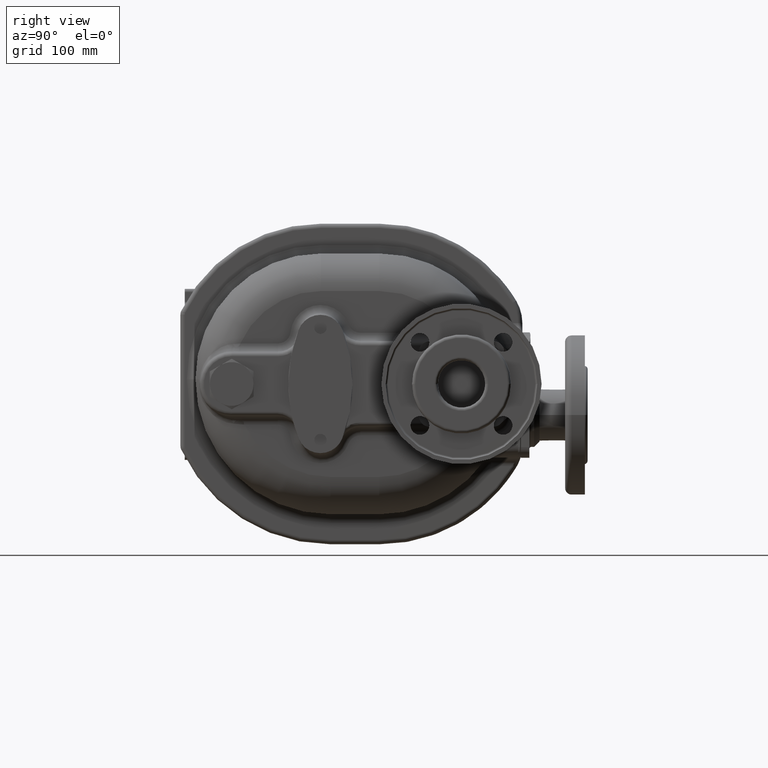
[diagram: clean part render]
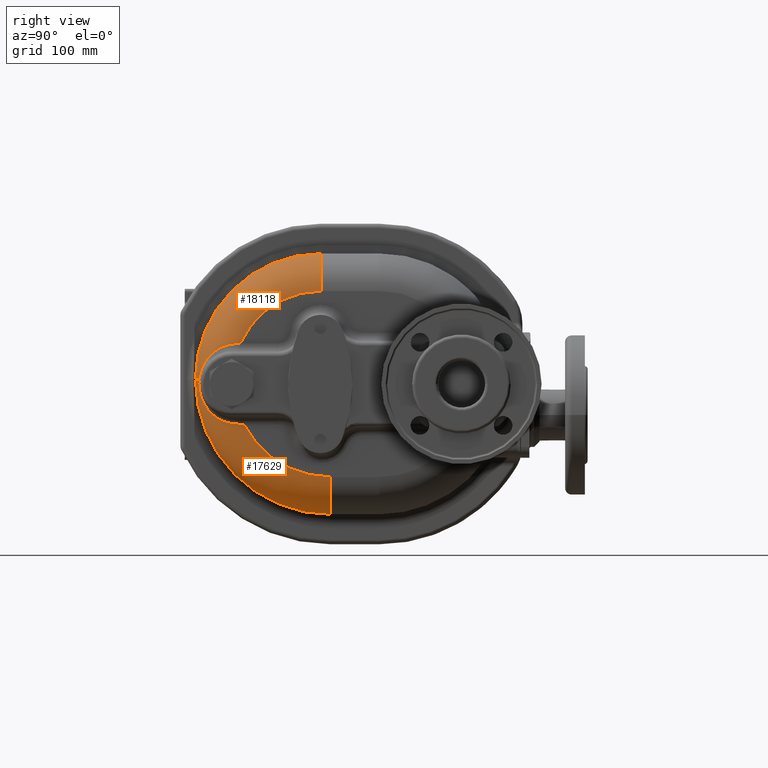
[diagram: same view with one multi-face feature highlighted, each face labeled with its STEP entity id]
A machine part, right view. The highlighted faces form ONE feature: a constant-radius fillet chain: 2 tangent blend faces with common blend radius 35 mm. The faces share edges in the B-rep.
Their STEP definitions:
[1] entity #18118 (Torus):
#4706=CARTESIAN_POINT('',(2.45E1,-8.7E1,-4.5E0));
#4707=DIRECTION('',(0.E0,0.E0,-1.E0));
#4708=DIRECTION('',(4.343204760822E-1,-9.007584160338E-1,0.E0));
#4709=AXIS2_PLACEMENT_3D('',#4706,#4707,#4708);
#4777=CARTESIAN_POINT('',(3.970121666288E1,-1.185265445612E2,-4.5E0));
#4810=CARTESIAN_POINT('',(2.45E1,-4.5E0,-4.5E0));
#4811=DIRECTION('',(1.E0,0.E0,0.E0));
#4812=DIRECTION('',(0.E0,0.E0,1.E0));
#4813=AXIS2_PLACEMENT_3D('',#4810,#4811,#4812);
#5016=CARTESIAN_POINT('',(5.95E1,-4.5E0,-4.5E0));
#5017=DIRECTION('',(1.E0,0.E0,0.E0));
#5018=DIRECTION('',(0.E0,0.E0,1.E0));
#5019=AXIS2_PLACEMENT_3D('',#5016,#5017,#5018);
#5053=CARTESIAN_POINT('',(5.896790278080E1,-8.671026349326E1,2.848256080268E1));
#5054=CARTESIAN_POINT('',(5.902602979515E1,-8.634487568833E1,2.850827826078E1));
#5055=CARTESIAN_POINT('',(5.913311016777E1,-8.560927043133E1,2.856066412844E1));
#5056=CARTESIAN_POINT('',(5.926561094780E1,-8.449248890311E1,2.864213432199E1));
#5057=CARTESIAN_POINT('',(5.936955658780E1,-8.336235053312E1,2.872662657921E1));
#5058=CARTESIAN_POINT('',(5.944445252807E1,-8.221913407429E1,2.881425466379E1));
#5059=CARTESIAN_POINT('',(5.948980401267E1,-8.106313141486E1,2.890513505456E1));
#5060=CARTESIAN_POINT('',(5.949999997499E1,-8.028386591820E1,2.896799567920E1));
#5061=CARTESIAN_POINT('',(5.95E1,-7.989230730004E1,2.9E1));
#5063=CARTESIAN_POINT('',(3.970121666288E1,-1.185265445612E2,-4.5E0));
#5064=CARTESIAN_POINT('',(3.975754491153E1,-1.184993846506E2,
-4.236840235408E0));
#5065=CARTESIAN_POINT('',(3.987816419137E1,-1.184390321552E2,
-3.704202796823E0));
#5066=CARTESIAN_POINT('',(4.008335915577E1,-1.183293120331E2,
-2.887645665343E0));
#5067=CARTESIAN_POINT('',(4.031387784195E1,-1.181988256165E2,
-2.051734451342E0));
#5068=CARTESIAN_POINT('',(4.057063040129E1,-1.180458926849E2,
-1.195509717043E0));
#5069=CARTESIAN_POINT('',(4.085436013785E1,-1.178687529862E2,
-3.184780769008E-1));
#5070=CARTESIAN_POINT('',(4.116560825928E1,-1.176655879588E2,
5.794054370406E-1));
#5071=CARTESIAN_POINT('',(4.150459498714E1,-1.174346084938E2,1.497553622814E0));
#5072=CARTESIAN_POINT('',(4.187114910014E1,-1.171741284169E2,2.434720076004E0));
#5073=CARTESIAN_POINT('',(4.226463798824E1,-1.168826535841E2,3.388961117184E0));
#5074=CARTESIAN_POINT('',(4.268392809077E1,-1.165589670200E2,4.357656493674E0));
#5075=CARTESIAN_POINT('',(4.312738700704E1,-1.162021971260E2,5.337594479451E0));
#5076=CARTESIAN_POINT('',(4.359293002463E1,-1.158118591784E2,6.325111945424E0));
#5077=CARTESIAN_POINT('',(4.407810311738E1,-1.153878668114E2,7.316266058080E0));
#5078=CARTESIAN_POINT('',(4.458018764451E1,-1.149305165764E2,8.307008988559E0));
#5079=CARTESIAN_POINT('',(4.509630951809E1,-1.144404539938E2,9.293341463786E0));
#5080=CARTESIAN_POINT('',(4.562355661014E1,-1.139186121264E2,1.027146345386E1));
#5081=CARTESIAN_POINT('',(4.615906900521E1,-1.133661537084E2,1.123786392785E1));
#5082=CARTESIAN_POINT('',(4.670010983041E1,-1.127844129506E2,1.218937734424E1));
#5083=CARTESIAN_POINT('',(4.724411192783E1,-1.121748454412E2,1.312320433399E1));
#5084=CARTESIAN_POINT('',(4.778870489526E1,-1.115389864973E2,1.403690863150E1));
#5085=CARTESIAN_POINT('',(4.833172450656E1,-1.108784207035E2,1.492839509158E1));
#5086=CARTESIAN_POINT('',(4.887121262291E1,-1.101947575565E2,1.579588218333E1));
#5087=CARTESIAN_POINT('',(4.940540863287E1,-1.094896149759E2,1.663786921708E1));
#5088=CARTESIAN_POINT('',(4.993273721541E1,-1.087646072178E2,1.745310466296E1));
#5089=CARTESIAN_POINT('',(5.045179405227E1,-1.080213364977E2,1.824055649589E1));
#5090=CARTESIAN_POINT('',(5.096133150609E1,-1.072613864603E2,1.899938631706E1));
#5091=CARTESIAN_POINT('',(5.146024433892E1,-1.064863178268E2,1.972892622659E1));
#5092=CARTESIAN_POINT('',(5.194755688365E1,-1.056976643126E2,2.042865968971E1));
#5093=CARTESIAN_POINT('',(5.242241118569E1,-1.048969293996E2,2.109820497285E1));
#5094=CARTESIAN_POINT('',(5.288405643996E1,-1.040855833313E2,2.173730115214E1));
#5095=CARTESIAN_POINT('',(5.333183969631E1,-1.032650600861E2,2.234579628324E1));
#5096=CARTESIAN_POINT('',(5.376519752309E1,-1.024367546019E2,2.292363705434E1));
#5097=CARTESIAN_POINT('',(5.418364866436E1,-1.016020199406E2,2.347085980897E1));
#5098=CARTESIAN_POINT('',(5.458678749078E1,-1.007621644903E2,2.398758255392E1));
#5099=CARTESIAN_POINT('',(5.497427807209E1,-9.991844931869E1,2.447399766230E1));
#5100=CARTESIAN_POINT('',(5.534584879631E1,-9.907208563935E1,2.493036514169E1));
#5101=CARTESIAN_POINT('',(5.570128748895E1,-9.822423228054E1,2.535700638869E1));
#5102=CARTESIAN_POINT('',(5.604043677248E1,-9.737599358039E1,2.575429810932E1));
#5103=CARTESIAN_POINT('',(5.636318968426E1,-9.652841760310E1,2.612266644748E1));
#5104=CARTESIAN_POINT('',(5.666948569998E1,-9.568249412799E1,2.646258149979E1));
#5105=CARTESIAN_POINT('',(5.695930671430E1,-9.483915345092E1,2.677455171409E1));
#5106=CARTESIAN_POINT('',(5.723267324173E1,-9.399926529878E1,2.705911850374E1));
#5107=CARTESIAN_POINT('',(5.748964067682E1,-9.316363821446E1,2.731685092479E1));
#5108=CARTESIAN_POINT('',(5.773029578464E1,-9.233301884019E1,2.754834059988E1));
#5109=CARTESIAN_POINT('',(5.795475282905E1,-9.150809287684E1,2.775419632608E1));
#5110=CARTESIAN_POINT('',(5.816315050973E1,-9.068948465278E1,2.793503962190E1));
#5111=CARTESIAN_POINT('',(5.835564893275E1,-8.987775369638E1,2.809149989485E1));
#5112=CARTESIAN_POINT('',(5.853242105645E1,-8.907342557606E1,2.822420675097E1));
#5113=CARTESIAN_POINT('',(5.869367182337E1,-8.827687231982E1,2.833379955416E1));
#5114=CARTESIAN_POINT('',(5.883956596088E1,-8.748868899340E1,2.842088114612E1));
#5115=CARTESIAN_POINT('',(5.892678064682E1,-8.696875816611E1,2.846436649549E1));
#5116=CARTESIAN_POINT('',(5.896790278080E1,-8.671026349326E1,2.848256080268E1));
#5118=CARTESIAN_POINT('',(2.45E1,-4.5E0,7.8E1));
#5119=DIRECTION('',(0.E0,-1.E0,0.E0));
#5120=DIRECTION('',(1.E0,0.E0,0.E0));
#5121=AXIS2_PLACEMENT_3D('',#5118,#5119,#5120);
#10007=CARTESIAN_POINT('',(2.45E1,-1.22E2,-4.5E0));
#10008=VERTEX_POINT('',#10007);
#10009=CARTESIAN_POINT('',(2.45E1,-4.5E0,1.13E2));
#10010=VERTEX_POINT('',#10009);
#10012=CARTESIAN_POINT('',(5.95E1,-4.5E0,7.8E1));
#10014=VERTEX_POINT('',#10012);
#10021=CARTESIAN_POINT('',(5.95E1,-7.989230729998E1,2.899999999977E1));
#10022=VERTEX_POINT('',#10021);
#10118=VERTEX_POINT('',#4777);
#10119=VERTEX_POINT('',#5116);
#18102=CARTESIAN_POINT('',(2.45E1,-4.5E0,-4.5E0));
#18103=DIRECTION('',(-1.E0,0.E0,0.E0));
#18104=DIRECTION('',(0.E0,1.859029776520E-4,9.999999827200E-1));
#18105=AXIS2_PLACEMENT_3D('',#18102,#18103,#18104);
#18106=TOROIDAL_SURFACE('',#18105,8.25E1,3.5E1);
#18107=ORIENTED_EDGE('',*,*,#18084,.T.);
#18109=ORIENTED_EDGE('',*,*,#18108,.F.);
#18111=ORIENTED_EDGE('',*,*,#18110,.F.);
#18112=ORIENTED_EDGE('',*,*,#17621,.T.);
#18113=ORIENTED_EDGE('',*,*,#17651,.F.);
#18115=ORIENTED_EDGE('',*,*,#18114,.F.);
#18116=EDGE_LOOP('',(#18107,#18109,#18111,#18112,#18113,#18115));
#18117=FACE_OUTER_BOUND('',#18116,.F.);
#18118=ADVANCED_FACE('',(#18117),#18106,.T.);
#4710=CIRCLE('',#4709,3.5E1);
#4814=CIRCLE('',#4813,1.175E2);
#5020=CIRCLE('',#5019,8.25E1);
#5062=B_SPLINE_CURVE_WITH_KNOTS('',3,(#5053,#5054,#5055,#5056,#5057,#5058,#5059,
#5060,#5061),.UNSPECIFIED.,.F.,.F.,(4,1,1,1,1,1,4),(0.E0,1.666666666667E-1,
3.333333333333E-1,5.E-1,6.666666666667E-1,8.333333333333E-1,1.E0),
.UNSPECIFIED.);
#5117=B_SPLINE_CURVE_WITH_KNOTS('',3,(#5063,#5064,#5065,#5066,#5067,#5068,#5069,
#5070,#5071,#5072,#5073,#5074,#5075,#5076,#5077,#5078,#5079,#5080,#5081,#5082,
#5083,#5084,#5085,#5086,#5087,#5088,#5089,#5090,#5091,#5092,#5093,#5094,#5095,
#5096,#5097,#5098,#5099,#5100,#5101,#5102,#5103,#5104,#5105,#5106,#5107,#5108,
#5109,#5110,#5111,#5112,#5113,#5114,#5115,#5116),.UNSPECIFIED.,.F.,.F.,(4,1,1,1,
1,1,1,1,1,1,1,1,1,1,1,1,1,1,1,1,1,1,1,1,1,1,1,1,1,1,1,1,1,1,1,1,1,1,1,1,1,1,1,1,
1,1,1,1,1,1,1,4),(0.E0,1.960784313725E-2,3.921568627451E-2,5.882352941176E-2,
7.843137254902E-2,9.803921568627E-2,1.176470588235E-1,1.372549019608E-1,
1.568627450980E-1,1.764705882353E-1,1.960784313725E-1,2.156862745098E-1,
2.352941176471E-1,2.549019607843E-1,2.745098039216E-1,2.941176470588E-1,
3.137254901961E-1,3.333333333333E-1,3.529411764706E-1,3.725490196078E-1,
3.921568627451E-1,4.117647058824E-1,4.313725490196E-1,4.509803921569E-1,
4.705882352941E-1,4.901960784314E-1,5.098039215686E-1,5.294117647059E-1,
5.490196078431E-1,5.686274509804E-1,5.882352941176E-1,6.078431372549E-1,
6.274509803922E-1,6.470588235294E-1,6.666666666667E-1,6.862745098039E-1,
7.058823529412E-1,7.254901960784E-1,7.450980392157E-1,7.647058823529E-1,
7.843137254902E-1,8.039215686275E-1,8.235294117647E-1,8.431372549020E-1,
8.627450980392E-1,8.823529411765E-1,9.019607843137E-1,9.215686274510E-1,
9.411764705882E-1,9.607843137255E-1,9.803921568627E-1,1.E0),.UNSPECIFIED.);
#5122=CIRCLE('',#5121,3.5E1);
#17621=EDGE_CURVE('',#10118,#10008,#4710,.T.);
#17651=EDGE_CURVE('',#10010,#10008,#4814,.T.);
#18084=EDGE_CURVE('',#10014,#10022,#5020,.T.);
#18108=EDGE_CURVE('',#10119,#10022,#5062,.T.);
#18110=EDGE_CURVE('',#10118,#10119,#5117,.T.);
#18114=EDGE_CURVE('',#10014,#10010,#5122,.T.);
[2] entity #17629 (Torus):
#4570=CARTESIAN_POINT('',(5.95E1,4.5E0,-4.5E0));
#4571=DIRECTION('',(1.E0,0.E0,0.E0));
#4572=DIRECTION('',(0.E0,-8.855831510342E-1,-4.644808743149E-1));
#4573=AXIS2_PLACEMENT_3D('',#4570,#4571,#4572);
#4701=CARTESIAN_POINT('',(2.45E1,4.5E0,-9.6E1));
#4702=DIRECTION('',(0.E0,1.E0,0.E0));
#4703=DIRECTION('',(1.E0,0.E0,0.E0));
#4704=AXIS2_PLACEMENT_3D('',#4701,#4702,#4703);
#4706=CARTESIAN_POINT('',(2.45E1,-8.7E1,-4.5E0));
#4707=DIRECTION('',(0.E0,0.E0,-1.E0));
#4708=DIRECTION('',(4.343204760822E-1,-9.007584160338E-1,0.E0));
#4709=AXIS2_PLACEMENT_3D('',#4706,#4707,#4708);
#4711=CARTESIAN_POINT('',(5.848180130472E1,-8.625933604142E1,
-4.620023547849E1));
#4712=CARTESIAN_POINT('',(5.842438479391E1,-8.652471765485E1,
-4.618026600948E1));
#4713=CARTESIAN_POINT('',(5.830440111598E1,-8.705864446193E1,
-4.613296193227E1));
#4714=CARTESIAN_POINT('',(5.810882986892E1,-8.786843939791E1,
-4.603929382518E1));
#4715=CARTESIAN_POINT('',(5.789734133622E1,-8.868725408391E1,
-4.592218548973E1));
#4716=CARTESIAN_POINT('',(5.766980888331E1,-8.951438589270E1,
-4.578098608726E1));
#4717=CARTESIAN_POINT('',(5.742604650510E1,-9.034940196222E1,
-4.561500581507E1));
#4718=CARTESIAN_POINT('',(5.716591582489E1,-9.119170377416E1,
-4.542357031621E1));
#4719=CARTESIAN_POINT('',(5.688930091298E1,-9.204064996955E1,
-4.520601190463E1));
#4720=CARTESIAN_POINT('',(5.659611654566E1,-9.289553329945E1,
-4.496167604769E1));
#4721=CARTESIAN_POINT('',(5.628631365220E1,-9.375557796750E1,
-4.468992828037E1));
#4722=CARTESIAN_POINT('',(5.595988197084E1,-9.461994358908E1,
-4.439015851275E1));
#4723=CARTESIAN_POINT('',(5.561685533256E1,-9.548772271155E1,
-4.406178761961E1));
#4724=CARTESIAN_POINT('',(5.525731584382E1,-9.635794229950E1,
-4.370427318830E1));
#4725=CARTESIAN_POINT('',(5.488139868734E1,-9.722956433618E1,
-4.331711580638E1));
#4726=CARTESIAN_POINT('',(5.448929721021E1,-9.810148671246E1,
-4.289986566225E1));
#4727=CARTESIAN_POINT('',(5.408126836002E1,-9.897254435762E1,
-4.245212950617E1));
#4728=CARTESIAN_POINT('',(5.365763833296E1,-9.984151100221E1,
-4.197357780602E1));
#4729=CARTESIAN_POINT('',(5.321880894068E1,-1.007071006155E2,
-4.146395266171E1));
#4730=CARTESIAN_POINT('',(5.276526451369E1,-1.015679691450E2,
-4.092307633376E1));
#4731=CARTESIAN_POINT('',(5.229757952186E1,-1.024227163500E2,
-4.035086063222E1));
#4732=CARTESIAN_POINT('',(5.181642726454E1,-1.032698873165E2,
-3.974731769938E1));
#4733=CARTESIAN_POINT('',(5.132258948159E1,-1.041079741897E2,
-3.911257216535E1));
#4734=CARTESIAN_POINT('',(5.081696734434E1,-1.049354175528E2,
-3.844687547605E1));
#4735=CARTESIAN_POINT('',(5.030059365873E1,-1.057506080013E2,
-3.775062251416E1));
#4736=CARTESIAN_POINT('',(4.977464679695E1,-1.065518872958E2,
-3.702437168236E1));
#4737=CARTESIAN_POINT('',(4.924046538589E1,-1.073375507386E2,
-3.626886776557E1));
#4738=CARTESIAN_POINT('',(4.869956477421E1,-1.081058491619E2,
-3.548506984061E1));
#4739=CARTESIAN_POINT('',(4.815365301066E1,-1.088549936544E2,-3.467418223E1));
#4740=CARTESIAN_POINT('',(4.760464637630E1,-1.095831621723E2,
-3.383768983455E1));
#4741=CARTESIAN_POINT('',(4.705468158115E1,-1.102885108158E2,
-3.297739545234E1));
#4742=CARTESIAN_POINT('',(4.650612211348E1,-1.109691911627E2,
-3.209545670439E1));
#4743=CARTESIAN_POINT('',(4.596155375614E1,-1.116233770593E2,
-3.119441666394E1));
#4744=CARTESIAN_POINT('',(4.542376542993E1,-1.122493017299E2,
-3.027722290890E1));
#4745=CARTESIAN_POINT('',(4.489570885345E1,-1.128453084394E2,
-2.934722370933E1));
#4746=CARTESIAN_POINT('',(4.438043222261E1,-1.134099150067E2,
-2.840812986536E1));
#4747=CARTESIAN_POINT('',(4.388098882923E1,-1.139418865854E2,
-2.746393709583E1));
#4748=CARTESIAN_POINT('',(4.340032215492E1,-1.144403124876E2,
-2.651880126366E1));
#4749=CARTESIAN_POINT('',(4.294113481814E1,-1.149046789885E2,
-2.557686463572E1));
#4750=CARTESIAN_POINT('',(4.250576932069E1,-1.153349134992E2,
-2.464207235070E1));
#4751=CARTESIAN_POINT('',(4.209611116786E1,-1.157313983542E2,
-2.371799089318E1));
#4752=CARTESIAN_POINT('',(4.171352290268E1,-1.160949550387E2,
-2.280763881798E1));
#4753=CARTESIAN_POINT('',(4.135882930557E1,-1.164267887472E2,
-2.191337682879E1));
#4754=CARTESIAN_POINT('',(4.103234613830E1,-1.167284084420E2,
-2.103685500857E1));
#4755=CARTESIAN_POINT('',(4.073394710245E1,-1.170015310706E2,
-2.017902595373E1));
#4756=CARTESIAN_POINT('',(4.046315072119E1,-1.172479870308E2,
-1.934020027189E1));
#4757=CARTESIAN_POINT('',(4.021921468956E1,-1.174696349923E2,
-1.852013352441E1));
#4758=CARTESIAN_POINT('',(4.000122242448E1,-1.176682958101E2,
-1.771810990932E1));
#4759=CARTESIAN_POINT('',(3.980817228876E1,-1.178456916499E2,
-1.693307102606E1));
#4760=CARTESIAN_POINT('',(3.963904324590E1,-1.180034095582E2,
-1.616372008198E1));
#4761=CARTESIAN_POINT('',(3.949282495790E1,-1.181428985467E2,
-1.540850320470E1));
#4762=CARTESIAN_POINT('',(3.936856980722E1,-1.182654458750E2,
-1.466570236621E1));
#4763=CARTESIAN_POINT('',(3.926542693274E1,-1.183721668093E2,
-1.393350863957E1));
#4764=CARTESIAN_POINT('',(3.918265997715E1,-1.184640060855E2,
-1.321005078574E1));
#4765=CARTESIAN_POINT('',(3.911965986786E1,-1.185417407137E2,
-1.249342048200E1));
#4766=CARTESIAN_POINT('',(3.907595301229E1,-1.186059842135E2,
-1.178168576448E1));
#4767=CARTESIAN_POINT('',(3.905120614039E1,-1.186571907235E2,
-1.107290110342E1));
#4768=CARTESIAN_POINT('',(3.904522898396E1,-1.186956585185E2,
-1.036511033954E1));
#4769=CARTESIAN_POINT('',(3.905797560210E1,-1.187215319661E2,
-9.656351509484E0));
#4770=CARTESIAN_POINT('',(3.908954453168E1,-1.187348023427E2,
-8.944652752272E0));
#4771=CARTESIAN_POINT('',(3.914017774227E1,-1.187353065803E2,
-8.228037776584E0));
#4772=CARTESIAN_POINT('',(3.921025796780E1,-1.187227246945E2,
-7.504537779313E0));
#4773=CARTESIAN_POINT('',(3.930030854947E1,-1.186965752060E2,
-6.772158026401E0));
#4774=CARTESIAN_POINT('',(3.941098543704E1,-1.186562084017E2,
-6.028943910668E0));
#4775=CARTESIAN_POINT('',(3.954305010922E1,-1.186008128704E2,
-5.273013561677E0));
#4776=CARTESIAN_POINT('',(3.964598218961E1,-1.185531770779E2,
-4.759177319034E0));
#4777=CARTESIAN_POINT('',(3.970121666288E1,-1.185265445612E2,-4.5E0));
#4779=CARTESIAN_POINT('',(5.95E1,-7.653085831964E1,-4.7E1));
#4780=CARTESIAN_POINT('',(5.949999998210E1,-7.695982414820E1,
-4.696156459939E1));
#4781=CARTESIAN_POINT('',(5.948876018256E1,-7.781230571232E1,
-4.688606853637E1));
#4782=CARTESIAN_POINT('',(5.943893536700E1,-7.907303419820E1,
-4.677693883095E1));
#4783=CARTESIAN_POINT('',(5.935686931795E1,-8.031614512452E1,
-4.667172841271E1));
#4784=CARTESIAN_POINT('',(5.924325901770E1,-8.154143950984E1,
-4.657030200291E1));
#4785=CARTESIAN_POINT('',(5.909877716852E1,-8.274885361577E1,
-4.647251632043E1));
#4786=CARTESIAN_POINT('',(5.892407031964E1,-8.393827636027E1,
-4.637823719677E1));
#4787=CARTESIAN_POINT('',(5.871979091632E1,-8.510947320601E1,
-4.628734619725E1));
#4788=CARTESIAN_POINT('',(5.856426307818E1,-8.587819411860E1,
-4.622891524642E1));
#4789=CARTESIAN_POINT('',(5.848180130472E1,-8.625933604142E1,
-4.620023547849E1));
#4800=CARTESIAN_POINT('',(2.45E1,4.5E0,-4.5E0));
#4801=DIRECTION('',(1.E0,0.E0,0.E0));
#4802=DIRECTION('',(0.E0,-1.E0,0.E0));
#4803=AXIS2_PLACEMENT_3D('',#4800,#4801,#4802);
#9999=CARTESIAN_POINT('',(5.95E1,4.5E0,-9.6E1));
#10001=VERTEX_POINT('',#9999);
#10003=CARTESIAN_POINT('',(2.45E1,4.5E0,-1.31E2));
#10005=VERTEX_POINT('',#10003);
#10007=CARTESIAN_POINT('',(2.45E1,-1.22E2,-4.5E0));
#10008=VERTEX_POINT('',#10007);
#10019=CARTESIAN_POINT('',(5.95E1,-7.653085831963E1,-4.699999999981E1));
#10020=VERTEX_POINT('',#10019);
#10116=VERTEX_POINT('',#4789);
#10118=VERTEX_POINT('',#4777);
#17612=CARTESIAN_POINT('',(2.45E1,4.5E0,-4.5E0));
#17613=DIRECTION('',(-1.E0,0.E0,0.E0));
#17614=DIRECTION('',(0.E0,-9.999999850914E-1,1.726766789819E-4));
#17615=AXIS2_PLACEMENT_3D('',#17612,#17613,#17614);
#17616=TOROIDAL_SURFACE('',#17615,9.15E1,3.5E1);
#17617=ORIENTED_EDGE('',*,*,#17249,.T.);
#17618=ORIENTED_EDGE('',*,*,#17607,.T.);
#17620=ORIENTED_EDGE('',*,*,#17619,.F.);
#17622=ORIENTED_EDGE('',*,*,#17621,.F.);
#17624=ORIENTED_EDGE('',*,*,#17623,.F.);
#17626=ORIENTED_EDGE('',*,*,#17625,.F.);
#17627=EDGE_LOOP('',(#17617,#17618,#17620,#17622,#17624,#17626));
#17628=FACE_OUTER_BOUND('',#17627,.F.);
#17629=ADVANCED_FACE('',(#17628),#17616,.T.);
#4574=CIRCLE('',#4573,9.15E1);
#4705=CIRCLE('',#4704,3.5E1);
#4710=CIRCLE('',#4709,3.5E1);
#4778=B_SPLINE_CURVE_WITH_KNOTS('',3,(#4711,#4712,#4713,#4714,#4715,#4716,#4717,
#4718,#4719,#4720,#4721,#4722,#4723,#4724,#4725,#4726,#4727,#4728,#4729,#4730,
#4731,#4732,#4733,#4734,#4735,#4736,#4737,#4738,#4739,#4740,#4741,#4742,#4743,
#4744,#4745,#4746,#4747,#4748,#4749,#4750,#4751,#4752,#4753,#4754,#4755,#4756,
#4757,#4758,#4759,#4760,#4761,#4762,#4763,#4764,#4765,#4766,#4767,#4768,#4769,
#4770,#4771,#4772,#4773,#4774,#4775,#4776,#4777),.UNSPECIFIED.,.F.,.F.,(4,1,1,1,
1,1,1,1,1,1,1,1,1,1,1,1,1,1,1,1,1,1,1,1,1,1,1,1,1,1,1,1,1,1,1,1,1,1,1,1,1,1,1,1,
1,1,1,1,1,1,1,1,1,1,1,1,1,1,1,1,1,1,1,1,4),(0.E0,1.5625E-2,3.125E-2,4.6875E-2,
6.25E-2,7.8125E-2,9.375E-2,1.09375E-1,1.25E-1,1.40625E-1,1.5625E-1,1.71875E-1,
1.875E-1,2.03125E-1,2.1875E-1,2.34375E-1,2.5E-1,2.65625E-1,2.8125E-1,2.96875E-1,
3.125E-1,3.28125E-1,3.4375E-1,3.59375E-1,3.75E-1,3.90625E-1,4.0625E-1,
4.21875E-1,4.375E-1,4.53125E-1,4.6875E-1,4.84375E-1,5.E-1,5.15625E-1,5.3125E-1,
5.46875E-1,5.625E-1,5.78125E-1,5.9375E-1,6.09375E-1,6.25E-1,6.40625E-1,
6.5625E-1,6.71875E-1,6.875E-1,7.03125E-1,7.1875E-1,7.34375E-1,7.5E-1,7.65625E-1,
7.8125E-1,7.96875E-1,8.125E-1,8.28125E-1,8.4375E-1,8.59375E-1,8.75E-1,
8.90625E-1,9.0625E-1,9.21875E-1,9.375E-1,9.53125E-1,9.6875E-1,9.84375E-1,1.E0),
.UNSPECIFIED.);
#4790=B_SPLINE_CURVE_WITH_KNOTS('',3,(#4779,#4780,#4781,#4782,#4783,#4784,#4785,
#4786,#4787,#4788,#4789),.UNSPECIFIED.,.F.,.F.,(4,1,1,1,1,1,1,1,4),(0.E0,
1.25E-1,2.5E-1,3.75E-1,5.E-1,6.25E-1,7.5E-1,8.75E-1,1.E0),.UNSPECIFIED.);
#4804=CIRCLE('',#4803,1.265E2);
#17249=EDGE_CURVE('',#10020,#10001,#4574,.T.);
#17607=EDGE_CURVE('',#10001,#10005,#4705,.T.);
#17619=EDGE_CURVE('',#10008,#10005,#4804,.T.);
#17621=EDGE_CURVE('',#10118,#10008,#4710,.T.);
#17623=EDGE_CURVE('',#10116,#10118,#4778,.T.);
#17625=EDGE_CURVE('',#10020,#10116,#4790,.T.);